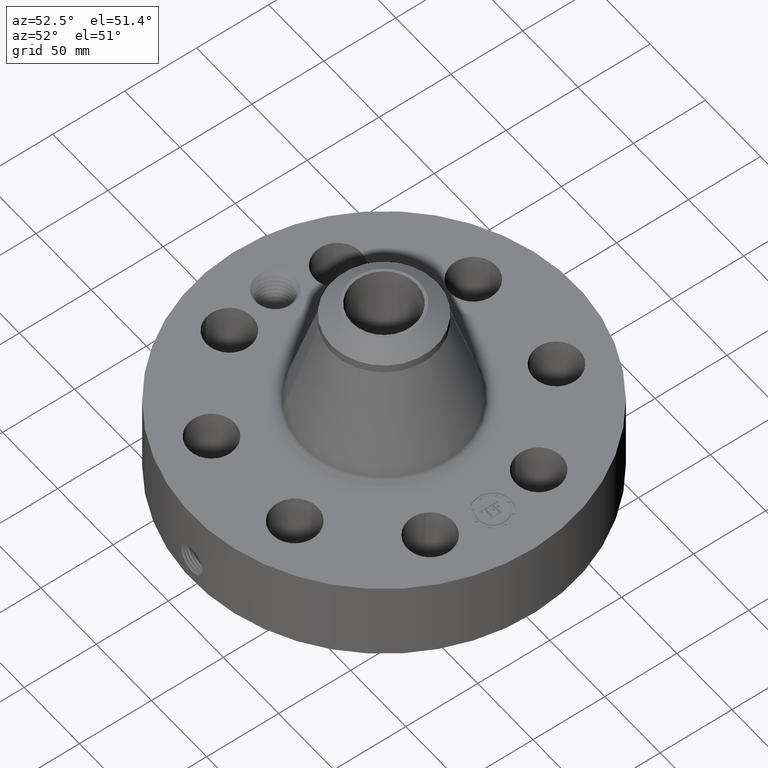
[diagram: clean part render]
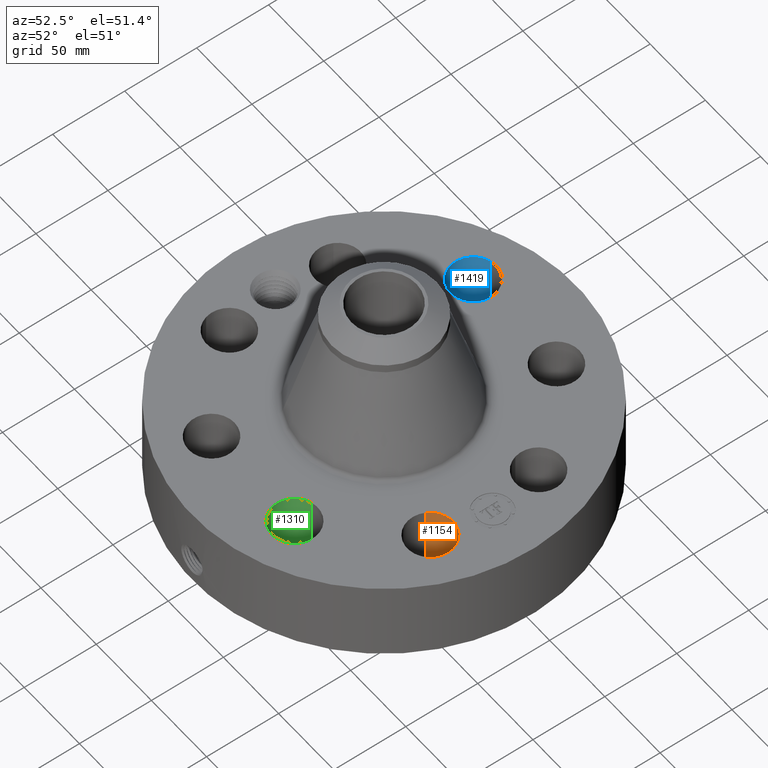
[diagram: same view with three faces highlighted in distinct colors, each labeled with its STEP entity id]
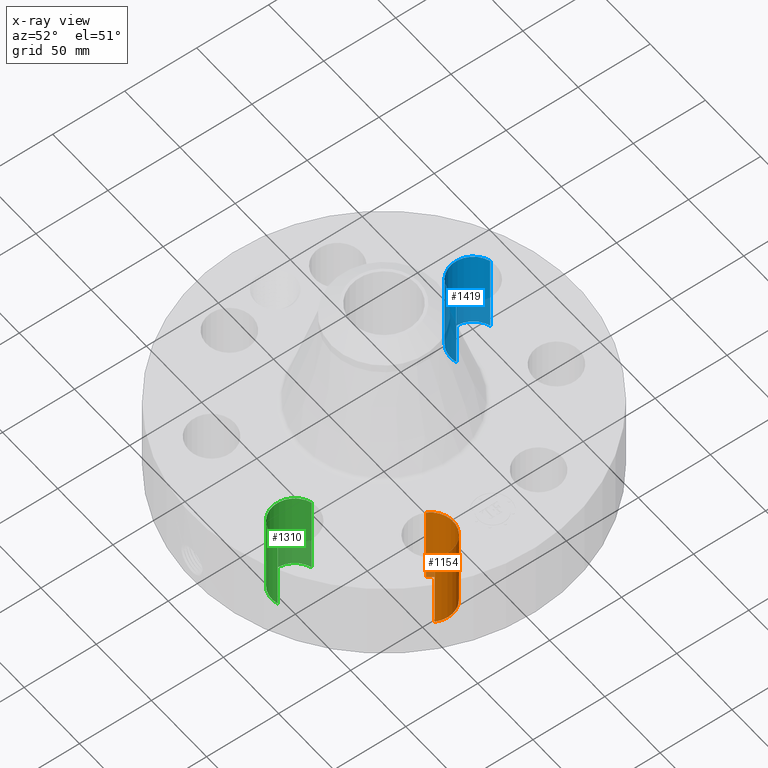
[diagram: x-ray of the same camera — body ghosted, the three highlighted faces saturated]
A machine part, auxiliary view with three faces highlighted in distinct colors.
The next image is the same camera in x-ray (body ghosted, the three faces saturated) — at least one of them is partly hidden behind the body in this view.
Their STEP definitions:

[orange] entity #1154 — the highlighted cylindrical surface (edge-blend (fillet) strip) has radius 15.875 mm, axis along (0, -0, -1).
#240=AXIS2_PLACEMENT_3D('Circle Axis2P3D',#238,#239,$) ;
#555=AXIS2_PLACEMENT_3D('Circle Axis2P3D',#553,#554,$) ;
#1129=AXIS2_PLACEMENT_3D('Cylinder Axis2P3D',#1126,#1127,#1128) ;
#233=CARTESIAN_POINT('Vertex',(4.12852228968,-1.78253926205,0.250000000001)) ;
#235=CARTESIAN_POINT('Vertex',(3.03154408731,-1.18325733879,0.250000000001)) ;
#238=CARTESIAN_POINT('Axis2P3D Location',(3.5800331885,-1.48289830042,0.250000000001)) ;
#553=CARTESIAN_POINT('Axis2P3D Location',(3.5800331885,-1.48289830042,2.50000000001)) ;
#557=CARTESIAN_POINT('Vertex',(3.03154408731,-1.18325733879,2.50000000001)) ;
#559=CARTESIAN_POINT('Vertex',(4.12852228968,-1.78253926205,2.50000000001)) ;
#1126=CARTESIAN_POINT('Axis2P3D Location',(3.5800331885,-1.48289830042,2.49606299214)) ;
#1131=CARTESIAN_POINT('Line Origine',(4.12852228968,-1.78253926205,1.37500000001)) ;
#1136=CARTESIAN_POINT('Line Origine',(3.03154408731,-1.18325733879,1.37500000001)) ;
#239=DIRECTION('Axis2P3D Direction',(0.,0.,-0.0393700787402)) ;
#554=DIRECTION('Axis2P3D Direction',(0.,0.,-0.0393700787402)) ;
#1127=DIRECTION('Axis2P3D Direction',(0.,-0.,-0.0393700787402)) ;
#1128=DIRECTION('Axis2P3D XDirection',(-0.0345504945626,0.0188750212049,0.)) ;
#1132=DIRECTION('Vector Direction',(0.,0.,-0.0393700787402)) ;
#1137=DIRECTION('Vector Direction',(0.,0.,-0.0393700787402)) ;
#1133=VECTOR('Line Direction',#1132,0.0393700787402) ;
#1138=VECTOR('Line Direction',#1137,0.0393700787402) ;
#1149=ORIENTED_EDGE('',*,*,#1140,.F.) ;
#1150=ORIENTED_EDGE('',*,*,#242,.T.) ;
#1151=ORIENTED_EDGE('',*,*,#1135,.T.) ;
#1152=ORIENTED_EDGE('',*,*,#561,.F.) ;
#1154=ADVANCED_FACE('PartBody',(#1153),#1130,.F.) ;
#241=CIRCLE('generated circle',#240,0.625000000002) ;
#556=CIRCLE('generated circle',#555,0.625000000002) ;
#1130=CYLINDRICAL_SURFACE('generated cylinder',#1129,0.625000000002) ;
#242=EDGE_CURVE('',#236,#234,#241,.T.) ;
#561=EDGE_CURVE('',#558,#560,#556,.T.) ;
#1135=EDGE_CURVE('',#234,#560,#1134,.F.) ;
#1140=EDGE_CURVE('',#236,#558,#1139,.F.) ;
#1148=EDGE_LOOP('',(#1149,#1150,#1151,#1152)) ;
#1153=FACE_OUTER_BOUND('',#1148,.T.) ;
#1134=LINE('Line',#1131,#1133) ;
#1139=LINE('Line',#1136,#1138) ;
#234=VERTEX_POINT('',#233) ;
#236=VERTEX_POINT('',#235) ;
#558=VERTEX_POINT('',#557) ;
#560=VERTEX_POINT('',#559) ;

[blue] entity #1419 — the highlighted cylindrical surface (edge-blend (fillet) strip) has radius 15.875 mm, axis along (0, 0, -1).
#339=AXIS2_PLACEMENT_3D('Circle Axis2P3D',#337,#338,$) ;
#672=AXIS2_PLACEMENT_3D('Circle Axis2P3D',#670,#671,$) ;
#1401=AXIS2_PLACEMENT_3D('Cylinder Axis2P3D',#1398,#1399,#1400) ;
#337=CARTESIAN_POINT('Axis2P3D Location',(-1.48289830042,3.5800331885,0.250000000001)) ;
#341=CARTESIAN_POINT('Vertex',(-1.30693609346,2.98031466975,0.250000000001)) ;
#343=CARTESIAN_POINT('Vertex',(-1.65886050739,4.17975170724,0.250000000001)) ;
#665=CARTESIAN_POINT('Vertex',(-1.65886050739,4.17975170724,2.50000000001)) ;
#667=CARTESIAN_POINT('Vertex',(-1.30693609346,2.98031466975,2.50000000001)) ;
#670=CARTESIAN_POINT('Axis2P3D Location',(-1.48289830042,3.5800331885,2.50000000001)) ;
#1398=CARTESIAN_POINT('Axis2P3D Location',(-1.48289830042,3.5800331885,2.49606299214)) ;
#1403=CARTESIAN_POINT('Line Origine',(-1.30693609346,2.98031466975,1.37500000001)) ;
#1408=CARTESIAN_POINT('Line Origine',(-1.65886050739,4.17975170724,1.37500000001)) ;
#338=DIRECTION('Axis2P3D Direction',(0.,0.,-0.0393700787402)) ;
#671=DIRECTION('Axis2P3D Direction',(0.,0.,-0.0393700787402)) ;
#1399=DIRECTION('Axis2P3D Direction',(0.,0.,-0.0393700787402)) ;
#1400=DIRECTION('Axis2P3D XDirection',(-0.0110842335096,0.0377775444876,0.)) ;
#1404=DIRECTION('Vector Direction',(0.,0.,-0.0393700787402)) ;
#1409=DIRECTION('Vector Direction',(0.,0.,-0.0393700787402)) ;
#1405=VECTOR('Line Direction',#1404,0.0393700787402) ;
#1410=VECTOR('Line Direction',#1409,0.0393700787402) ;
#1414=ORIENTED_EDGE('',*,*,#1407,.F.) ;
#1415=ORIENTED_EDGE('',*,*,#345,.T.) ;
#1416=ORIENTED_EDGE('',*,*,#1412,.T.) ;
#1417=ORIENTED_EDGE('',*,*,#674,.F.) ;
#1419=ADVANCED_FACE('PartBody',(#1418),#1402,.F.) ;
#340=CIRCLE('generated circle',#339,0.625000000003) ;
#673=CIRCLE('generated circle',#672,0.625000000003) ;
#1402=CYLINDRICAL_SURFACE('generated cylinder',#1401,0.625000000003) ;
#345=EDGE_CURVE('',#342,#344,#340,.T.) ;
#674=EDGE_CURVE('',#668,#666,#673,.T.) ;
#1407=EDGE_CURVE('',#342,#668,#1406,.F.) ;
#1412=EDGE_CURVE('',#344,#666,#1411,.F.) ;
#1413=EDGE_LOOP('',(#1414,#1415,#1416,#1417)) ;
#1418=FACE_OUTER_BOUND('',#1413,.T.) ;
#1406=LINE('Line',#1403,#1405) ;
#1411=LINE('Line',#1408,#1410) ;
#342=VERTEX_POINT('',#341) ;
#344=VERTEX_POINT('',#343) ;
#666=VERTEX_POINT('',#665) ;
#668=VERTEX_POINT('',#667) ;

[green] entity #1310 — the highlighted cylindrical surface (edge-blend (fillet) strip) has radius 15.875 mm, axis along (0, -0, -1).
#276=AXIS2_PLACEMENT_3D('Circle Axis2P3D',#274,#275,$) ;
#591=AXIS2_PLACEMENT_3D('Circle Axis2P3D',#589,#590,$) ;
#1285=AXIS2_PLACEMENT_3D('Cylinder Axis2P3D',#1282,#1283,#1284) ;
#269=CARTESIAN_POINT('Vertex',(1.30693609346,-2.98031466975,0.250000000001)) ;
#271=CARTESIAN_POINT('Vertex',(1.65886050739,-4.17975170724,0.250000000001)) ;
#274=CARTESIAN_POINT('Axis2P3D Location',(1.48289830042,-3.5800331885,0.250000000001)) ;
#589=CARTESIAN_POINT('Axis2P3D Location',(1.48289830042,-3.5800331885,2.50000000001)) ;
#593=CARTESIAN_POINT('Vertex',(1.65886050739,-4.17975170724,2.50000000001)) ;
#595=CARTESIAN_POINT('Vertex',(1.30693609346,-2.98031466975,2.50000000001)) ;
#1282=CARTESIAN_POINT('Axis2P3D Location',(1.48289830042,-3.5800331885,2.49606299214)) ;
#1287=CARTESIAN_POINT('Line Origine',(1.30693609346,-2.98031466975,1.37500000001)) ;
#1292=CARTESIAN_POINT('Line Origine',(1.65886050739,-4.17975170724,1.37500000001)) ;
#275=DIRECTION('Axis2P3D Direction',(0.,0.,-0.0393700787402)) ;
#590=DIRECTION('Axis2P3D Direction',(0.,0.,-0.0393700787402)) ;
#1283=DIRECTION('Axis2P3D Direction',(0.,-0.,-0.0393700787402)) ;
#1284=DIRECTION('Axis2P3D XDirection',(0.0110842335096,-0.0377775444876,0.)) ;
#1288=DIRECTION('Vector Direction',(0.,0.,-0.0393700787402)) ;
#1293=DIRECTION('Vector Direction',(0.,0.,-0.0393700787402)) ;
#1289=VECTOR('Line Direction',#1288,0.0393700787402) ;
#1294=VECTOR('Line Direction',#1293,0.0393700787402) ;
#1305=ORIENTED_EDGE('',*,*,#1296,.F.) ;
#1306=ORIENTED_EDGE('',*,*,#278,.T.) ;
#1307=ORIENTED_EDGE('',*,*,#1291,.T.) ;
#1308=ORIENTED_EDGE('',*,*,#597,.F.) ;
#1310=ADVANCED_FACE('PartBody',(#1309),#1286,.F.) ;
#277=CIRCLE('generated circle',#276,0.625000000003) ;
#592=CIRCLE('generated circle',#591,0.625000000003) ;
#1286=CYLINDRICAL_SURFACE('generated cylinder',#1285,0.625000000003) ;
#278=EDGE_CURVE('',#272,#270,#277,.T.) ;
#597=EDGE_CURVE('',#594,#596,#592,.T.) ;
#1291=EDGE_CURVE('',#270,#596,#1290,.F.) ;
#1296=EDGE_CURVE('',#272,#594,#1295,.F.) ;
#1304=EDGE_LOOP('',(#1305,#1306,#1307,#1308)) ;
#1309=FACE_OUTER_BOUND('',#1304,.T.) ;
#1290=LINE('Line',#1287,#1289) ;
#1295=LINE('Line',#1292,#1294) ;
#270=VERTEX_POINT('',#269) ;
#272=VERTEX_POINT('',#271) ;
#594=VERTEX_POINT('',#593) ;
#596=VERTEX_POINT('',#595) ;